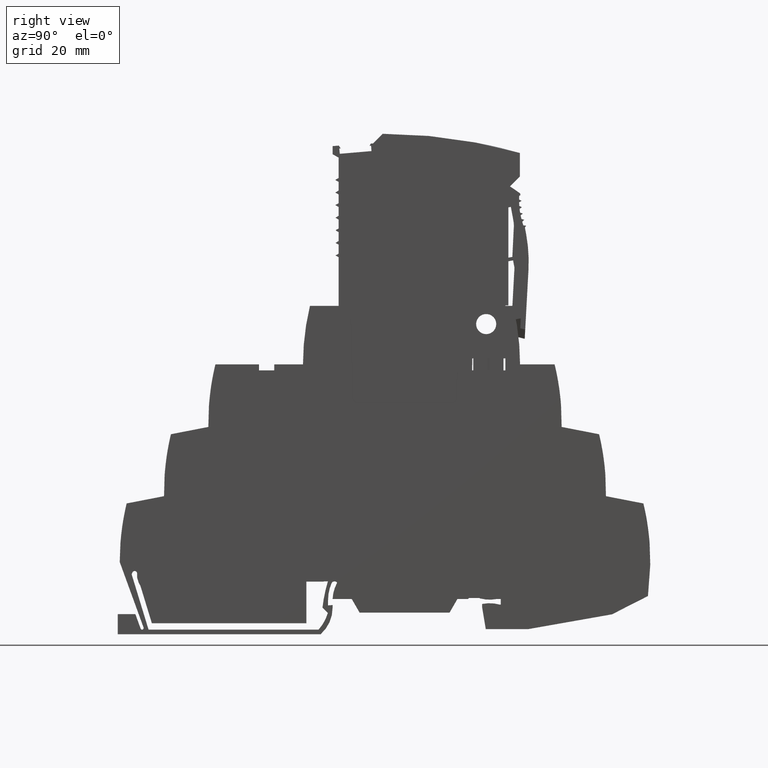
[diagram: clean part render]
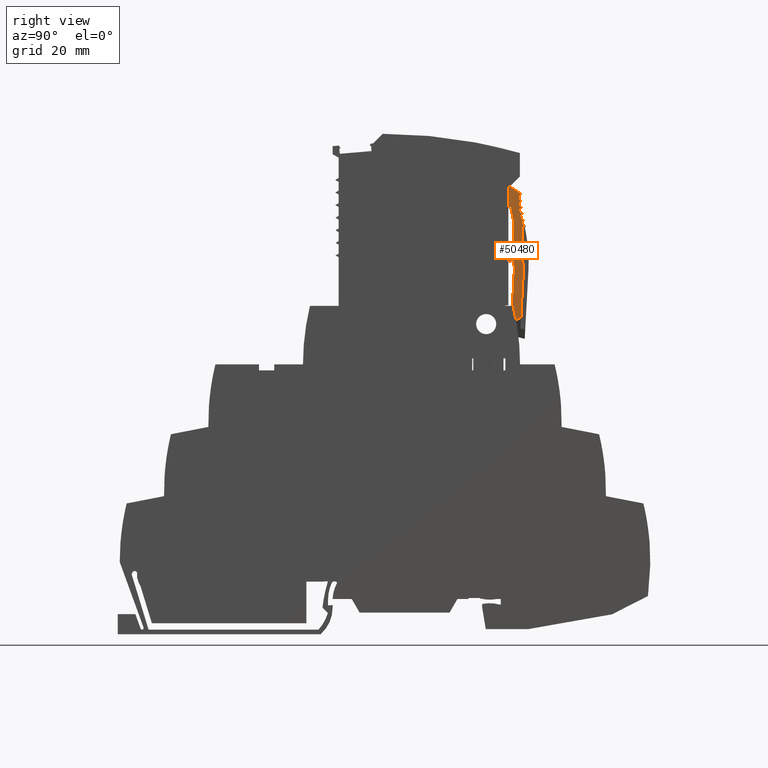
[diagram: same view with one face highlighted and labeled with its STEP entity id]
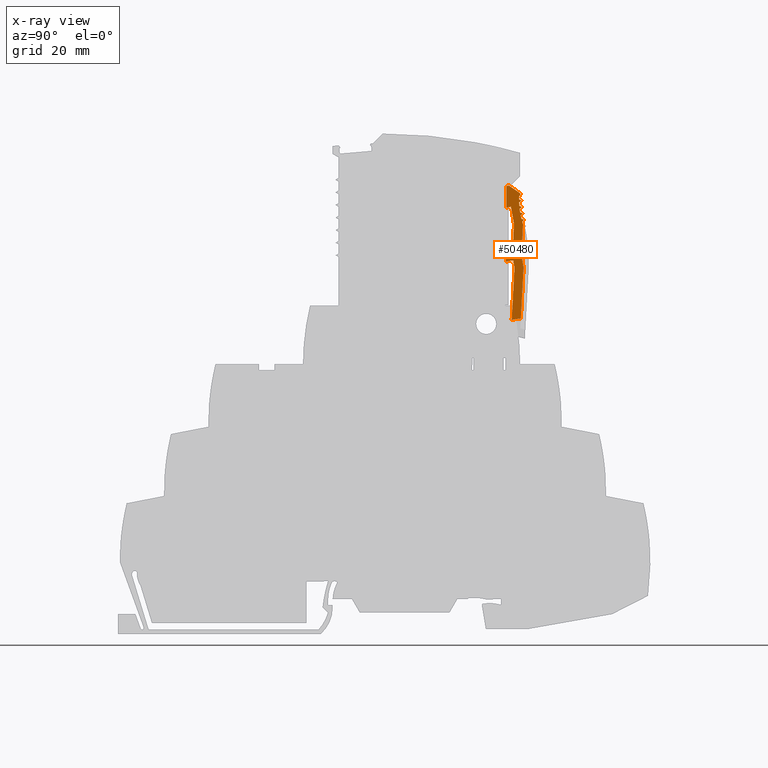
[diagram: x-ray of the same camera — body ghosted, the highlighted face saturated]
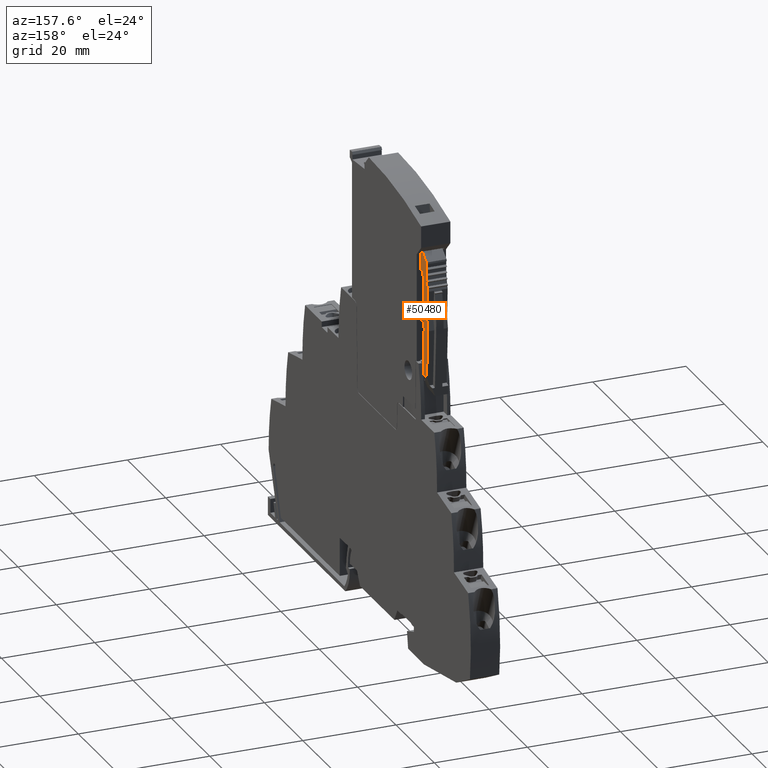
[diagram: same view with one face highlighted and labeled with its STEP entity id]
A machine part, right view. The second image highlights one B-rep face of the part: STEP entity #50480.
The next image is the same camera in x-ray: the body ghosted, the highlighted face saturated — about 0% of this face is hidden behind the body in this view.
A second angle (auxiliary view) of the same face is appended — the face is thin or edge-on in the first view.
In plain terms, the highlighted planar face has unit normal (1, -0, 0).
Its self-contained STEP definition (entity closure, byte-faithful):
#3870=CARTESIAN_POINT('',(1.62298429946844,82.1011467988574,
5.20000083678018));
#3880=VERTEX_POINT('',#3870);
#3910=CARTESIAN_POINT('',(1.09429344283373,84.0300029308981,
5.20000083316418));
#3920=DIRECTION('',(2.8134761309659E-9,-1.10352373928041E-9,-1.));
#3930=DIRECTION('',(-0.999999999999995,9.92840027722557E-8,
-2.81347624052814E-9));
#3940=AXIS2_PLACEMENT_3D('',#3910,#3920,#3930);
#3950=CIRCLE('',#3940,2.);
#3960=CARTESIAN_POINT('',(1.12243019621117,82.0302008599147,
5.20000083545017));
#3970=VERTEX_POINT('',#3960);
#3980=EDGE_CURVE('',#3880,#3970,#3950,.T.);
#5430=CARTESIAN_POINT('',(0.997363683565904,67.6991603742551,
5.20000084049094));
#5440=VERTEX_POINT('',#5430);
#5470=CARTESIAN_POINT('',(0.997363683566063,67.6991603742737,
5.20000084049094));
#5480=DIRECTION('',(-0.00872663477859719,-0.999961922197761,
4.41660643497786E-10));
#5490=VECTOR('',#5480,1.);
#5500=LINE('',#5470,#5490);
#5510=CARTESIAN_POINT('',(0.991140705468159,66.9860858273872,
5.20000084080589));
#5520=VERTEX_POINT('',#5510);
#5530=EDGE_CURVE('',#5440,#5520,#5500,.T.);
#5640=CARTESIAN_POINT('',(0.406555339478865,0.,5.20000087039215));
#5650=DIRECTION('',(0.00872663477859642,0.999961922197761,
-4.41660905764474E-10));
#5660=VECTOR('',#5650,1.);
#5670=LINE('',#5640,#5660);
#5680=CARTESIAN_POINT('',(1.08470762615459,77.7076709787711,
5.20000083607041));
#5690=VERTEX_POINT('',#5680);
#5700=EDGE_CURVE('',#5690,#3970,#5670,.T.);
#48120=CARTESIAN_POINT('',(3.34118784050877,60.6443424671896,
5.20000084961082));
#48130=DIRECTION('',(-2.49602655445891E-9,4.63460466040404E-10,1.));
#48140=DIRECTION('',(0.983254907564019,0.182235525491798,
2.36977139750829E-9));
#48150=AXIS2_PLACEMENT_3D('',#48120,#48130,#48140);
#48160=PLANE('',#48150);
#48170=CARTESIAN_POINT('',(14.9108958416861,0.,5.20000090659537));
#48180=DIRECTION('',(0.182235525491749,-0.983254907564028,
9.10564484923881E-10));
#48190=VECTOR('',#48180,1.);
#48200=LINE('',#48170,#48190);
#48210=CARTESIAN_POINT('',(2.4457906289952,67.2556892549208,
5.20000084431179));
#48220=VERTEX_POINT('',#48210);
#48230=CARTESIAN_POINT('',(2.71914391723229,65.7808068935777,
5.20000084567763));
#48240=VERTEX_POINT('',#48230);
#48250=EDGE_CURVE('',#48220,#48240,#48200,.T.);
#48260=ORIENTED_EDGE('',*,*,#48250,.T.);
#48270=CARTESIAN_POINT('',(0.,66.8023887556447,5.20000083841712));
#48280=DIRECTION('',(0.983254907564271,0.182235525490438,
2.36977139300709E-9));
#48290=VECTOR('',#48280,1.);
#48300=LINE('',#48270,#48290);
#48310=EDGE_CURVE('',#5520,#48220,#48300,.T.);
#48320=ORIENTED_EDGE('',*,*,#48310,.T.);
#48330=ORIENTED_EDGE('',*,*,#5530,.T.);
#48340=CARTESIAN_POINT('',(0.,67.5143099417145,5.20000083808717));
#48350=DIRECTION('',(-0.98325490756426,-0.182235525490498,
-2.36977139300709E-9));
#48360=VECTOR('',#48350,1.);
#48370=LINE('',#48340,#48360);
#48380=CARTESIAN_POINT('',(2.29821344944301,67.9402586274791,
5.20000084362616));
#48390=VERTEX_POINT('',#48380);
#48400=EDGE_CURVE('',#48390,#5440,#48370,.T.);
#48410=ORIENTED_EDGE('',*,*,#48400,.T.);
#48420=CARTESIAN_POINT('',(-1.04015361656124,0.,5.20000086678113));
#48430=DIRECTION('',(-0.0490775910702315,-0.998794968977489,
3.40403007864643E-10));
#48440=VECTOR('',#48430,1.);
#48450=LINE('',#48420,#48440);
#48460=CARTESIAN_POINT('',(2.59360711926246,73.9519170004669,
5.2000008415773));
#48470=VERTEX_POINT('',#48460);
#48480=EDGE_CURVE('',#48470,#48390,#48450,.T.);
#48490=ORIENTED_EDGE('',*,*,#48480,.T.);
#48500=CARTESIAN_POINT('',(-2.400367725625,74.197304955818,
5.20000082899849));
#48510=DIRECTION('',(2.49602655820842E-9,-4.63460465345472E-10,-1.));
#48520=DIRECTION('',(0.983254907566442,0.182235525478725,
2.36977140133376E-9));
#48530=AXIS2_PLACEMENT_3D('',#48500,#48510,#48520);
#48540=CIRCLE('',#48530,5.00000000000001);
#48550=CARTESIAN_POINT('',(2.51590681219511,75.108482583277,
5.20000084084734));
#48560=VERTEX_POINT('',#48550);
#48570=EDGE_CURVE('',#48560,#48470,#48540,.T.);
#48580=ORIENTED_EDGE('',*,*,#48570,.T.);
#48590=CARTESIAN_POINT('',(16.4364412404051,0.,5.20000091040318));
#48600=DIRECTION('',(0.182235525491783,-0.983254907564022,
9.10564498801669E-10));
#48610=VECTOR('',#48600,1.);
#48620=LINE('',#48590,#48610);
#48630=CARTESIAN_POINT('',(2.002644084539,77.8778004452754,
5.20000083828275));
#48640=VERTEX_POINT('',#48630);
#48650=EDGE_CURVE('',#48640,#48560,#48620,.T.);
#48660=ORIENTED_EDGE('',*,*,#48650,.T.);
#48670=CARTESIAN_POINT('',(0.,77.5066323033104,5.20000083345612));
#48680=DIRECTION('',(-0.983254907564069,-0.182235525491532,
-2.36977139300709E-9));
#48690=VECTOR('',#48680,1.);
#48700=LINE('',#48670,#48690);
#48710=EDGE_CURVE('',#48640,#5690,#48700,.T.);
#48720=ORIENTED_EDGE('',*,*,#48710,.F.);
#48730=ORIENTED_EDGE('',*,*,#5700,.F.);
#48740=ORIENTED_EDGE('',*,*,#3980,.T.);
#48750=CARTESIAN_POINT('',(0.,83.2165930031065,5.20000083080978));
#48760=DIRECTION('',(0.824126188621771,-0.566406236925188,
2.31954783158628E-9));
#48770=VECTOR('',#48760,1.);
#48780=LINE('',#48750,#48770);
#48790=CARTESIAN_POINT('',(3.84168019135634,80.576279358548,
5.2000008416224));
#48800=VERTEX_POINT('',#48790);
#48810=EDGE_CURVE('',#3880,#48800,#48780,.T.);
#48820=ORIENTED_EDGE('',*,*,#48810,.F.);
#48830=CARTESIAN_POINT('',(18.7756108517462,0.,5.20000091624181));
#48840=DIRECTION('',(-0.18223552549144,0.983254907564086,
-9.10564498801669E-10));
#48850=VECTOR('',#48840,1.);
#48860=LINE('',#48830,#48850);
#48870=CARTESIAN_POINT('',(3.90963086502837,80.2096503317425,
5.20000084196192));
#48880=VERTEX_POINT('',#48870);
#48890=EDGE_CURVE('',#48880,#48800,#48860,.T.);
#48900=ORIENTED_EDGE('',*,*,#48890,.T.);
#48910=CARTESIAN_POINT('',(0.,78.3448520672441,5.20000083306764));
#48920=DIRECTION('',(0.902585284350011,0.430511096807981,
2.05335196068468E-9));
#48930=VECTOR('',#48920,1.);
#48940=LINE('',#48910,#48930);
#48950=CARTESIAN_POINT('',(3.66617811406199,80.0935293261636,
5.20000084140807));
#48960=VERTEX_POINT('',#48950);
#48970=EDGE_CURVE('',#48960,#48880,#48940,.T.);
#48980=ORIENTED_EDGE('',*,*,#48970,.T.);
#48990=CARTESIAN_POINT('',(18.6397237342521,79.2030622801326,
5.20000087919514));
#49000=DIRECTION('',(2.49602655487909E-9,-4.63460466044779E-10,-1.));
#49010=DIRECTION('',(-0.999945777116274,0.01041358859049,
-2.50071749974278E-9));
#49020=AXIS2_PLACEMENT_3D('',#48990,#49000,#49010);
#49030=CIRCLE('',#49020,14.9999999999994);
#49040=CARTESIAN_POINT('',(3.64053707750857,79.35926610899,
5.20000084168438));
#49050=VERTEX_POINT('',#49040);
#49060=EDGE_CURVE('',#49050,#48960,#49030,.T.);
#49070=ORIENTED_EDGE('',*,*,#49060,.T.);
#49080=CARTESIAN_POINT('',(0.,81.4189828854286,5.2000008316429));
#49090=DIRECTION('',(-0.870355695939795,0.492423560103653,
-2.4006497900686E-9));
#49100=VECTOR('',#49090,1.);
#49110=LINE('',#49080,#49100);
#49120=CARTESIAN_POINT('',(4.14027584982197,79.0765275154099,
5.20000084306278));
#49130=VERTEX_POINT('',#49120);
#49140=EDGE_CURVE('',#49130,#49050,#49110,.T.);
#49150=ORIENTED_EDGE('',*,*,#49140,.T.);
#49160=CARTESIAN_POINT('',(0.,76.6377186594679,5.20000083385883));
#49170=DIRECTION('',(0.86162916044171,0.507538362960392,
1.91542531835509E-9));
#49180=VECTOR('',#49170,1.);
#49190=LINE('',#49160,#49180);
#49200=CARTESIAN_POINT('',(3.64554765899443,78.7851103401204,
5.20000084196298));
#49210=VERTEX_POINT('',#49200);
#49220=EDGE_CURVE('',#49210,#49130,#49190,.T.);
#49230=ORIENTED_EDGE('',*,*,#49220,.T.);
#49240=CARTESIAN_POINT('',(18.6397237342525,79.2030622801311,
5.20000087919514));
#49250=DIRECTION('',(2.4960265335364E-9,-4.63460467651527E-10,-1.));
#49260=DIRECTION('',(-0.997048285590744,-0.0767770551698732,
-2.45307584615754E-9));
#49270=AXIS2_PLACEMENT_3D('',#49240,#49250,#49260);
#49280=CIRCLE('',#49270,15.);
#49290=CARTESIAN_POINT('',(3.68399945039134,78.0514064525829,
5.200000842399));
#49300=VERTEX_POINT('',#49290);
#49310=EDGE_CURVE('',#49300,#49210,#49280,.T.);
#49320=ORIENTED_EDGE('',*,*,#49310,.T.);
#49330=CARTESIAN_POINT('',(0.,79.7303017274961,5.20000083242554));
#49340=DIRECTION('',(-0.909961270876333,0.414693242656701,
-2.46348141885733E-9));
#49350=VECTOR('',#49340,1.);
#49360=LINE('',#49330,#49350);
#49370=CARTESIAN_POINT('',(4.20647885792507,77.8132988685944,
5.20000084381348));
#49380=VERTEX_POINT('',#49370);
#49390=EDGE_CURVE('',#49380,#49300,#49360,.T.);
#49400=ORIENTED_EDGE('',*,*,#49390,.T.);
#49410=CARTESIAN_POINT('',(0.,74.8128466589814,5.20000083470458));
#49420=DIRECTION('',(0.814115518356349,0.580702955710898,
1.76292111464527E-9));
#49430=VECTOR('',#49420,1.);
#49440=LINE('',#49410,#49430);
#49450=CARTESIAN_POINT('',(3.73903193759044,77.4798722207099,
5.20000084280125));
#49460=VERTEX_POINT('',#49450);
#49470=EDGE_CURVE('',#49460,#49380,#49440,.T.);
#49480=ORIENTED_EDGE('',*,*,#49470,.T.);
#49490=CARTESIAN_POINT('',(18.6397237342521,79.2030622801326,
5.20000083666593));
#49500=DIRECTION('',(2.49602656770005E-9,-4.63460463847555E-10,-1.));
#49510=DIRECTION('',(-0.986562654577628,-0.163383379181432,
-2.38676485982604E-9));
#49520=AXIS2_PLACEMENT_3D('',#49490,#49500,#49510);
#49530=CIRCLE('',#49520,14.9999999999997);
#49540=CARTESIAN_POINT('',(3.84128391558787,76.7523115924118,
5.20000084339367));
#49550=VERTEX_POINT('',#49540);
#49560=EDGE_CURVE('',#49550,#49460,#49530,.T.);
#49570=ORIENTED_EDGE('',*,*,#49560,.T.);
#49580=CARTESIAN_POINT('',(0.,78.1125815692863,5.20000083317529));
#49590=DIRECTION('',(-0.942641491092066,0.333806859234087,
-2.50756446162903E-9));
#49600=VECTOR('',#49590,1.);
#49610=LINE('',#49580,#49600);
#49620=CARTESIAN_POINT('',(4.38252757457421,76.5606471605001,
5.20000084483345));
#49630=VERTEX_POINT('',#49620);
#49640=EDGE_CURVE('',#49630,#49550,#49610,.T.);
#49650=ORIENTED_EDGE('',*,*,#49640,.T.);
#49660=CARTESIAN_POINT('',(0.,72.8176150055485,5.2000008356293));
#49670=DIRECTION('',(0.760405965600322,0.649448048329843,
1.5970000322163E-9));
#49680=VECTOR('',#49670,1.);
#49690=LINE('',#49660,#49680);
#49700=CARTESIAN_POINT('',(3.9459194780434,76.1877486181365,
5.20000084391649));
#49710=VERTEX_POINT('',#49700);
#49720=EDGE_CURVE('',#49710,#49630,#49690,.T.);
#49730=ORIENTED_EDGE('',*,*,#49720,.T.);
#49740=CARTESIAN_POINT('',(18.6397237342525,79.2030622801311,
5.20000087919514));
#49750=DIRECTION('',(2.49602653633126E-9,-4.63460470695917E-10,-1.));
#49760=DIRECTION('',(-0.968568686060409,-0.248746257023522,
-2.30228908530232E-9));
#49770=AXIS2_PLACEMENT_3D('',#49740,#49750,#49760);
#49780=CIRCLE('',#49770,15.);
#49790=CARTESIAN_POINT('',(4.11119344334635,75.4718684247783,
5.2000008446608));
#49800=VERTEX_POINT('',#49790);
#49810=EDGE_CURVE('',#49800,#49710,#49780,.T.);
#49820=ORIENTED_EDGE('',*,*,#49810,.T.);
#49830=CARTESIAN_POINT('',(0.,76.5350953419164,5.20000083390639));
#49840=DIRECTION('',(-0.968147640378105,0.250380004054452,
-2.53256346449682E-9));
#49850=VECTOR('',#49840,1.);
#49860=LINE('',#49830,#49850);
#49870=CARTESIAN_POINT('',(4.66708216272639,75.3281058270016,
5.20000084611494));
#49880=VERTEX_POINT('',#49870);
#49890=EDGE_CURVE('',#49880,#49800,#49860,.T.);
#49900=ORIENTED_EDGE('',*,*,#49890,.T.);
#49910=CARTESIAN_POINT('',(-69.3576412692333,0.,5.20000069625887));
#49920=DIRECTION('',(0.700909264300218,0.713250449153821,
1.41892475546967E-9));
#49930=VECTOR('',#49920,1.);
#49940=LINE('',#49910,#49930);
#49950=CARTESIAN_POINT('',(4.2646357412475,74.9185733732299,
5.20000084530023));
#49960=VERTEX_POINT('',#49950);
#49970=EDGE_CURVE('',#49960,#49880,#49940,.T.);
#49980=ORIENTED_EDGE('',*,*,#49970,.T.);
#49990=CARTESIAN_POINT('',(18.6397237342521,79.2030622801326,
5.20000087919514));
#50000=DIRECTION('',(2.49602643404491E-9,-4.63460488357819E-10,-1.));
#50010=DIRECTION('',(0.983254907564019,0.182235525491798,
2.3697712750436E-9));
#50020=AXIS2_PLACEMENT_3D('',#49990,#50000,#50010);
#50030=CIRCLE('',#50020,14.9999999999999);
#50040=CARTESIAN_POINT('',(4.41928562035126,74.4303125644326,
5.20000084591253));
#50050=VERTEX_POINT('',#50040);
#50060=EDGE_CURVE('',#50050,#49960,#50030,.T.);
#50070=ORIENTED_EDGE('',*,*,#50060,.T.);
#50080=CARTESIAN_POINT('',(0.762018056238112,0.,5.2000008712794));
#50090=DIRECTION('',(0.0490775910698834,0.998794968977506,
-3.40403007864643E-10));
#50100=VECTOR('',#50090,1.);
#50110=LINE('',#50080,#50100);
#50120=CARTESIAN_POINT('',(4.1106918269203,68.1500139267586,
5.20000084805294));
#50130=VERTEX_POINT('',#50120);
#50140=EDGE_CURVE('',#50130,#50050,#50110,.T.);
#50150=ORIENTED_EDGE('',*,*,#50140,.T.);
#50160=CARTESIAN_POINT('',(16.7415503201765,0.,5.20000091116474));
#50170=DIRECTION('',(-0.182235525492147,0.983254907563955,
-9.10564498801669E-10));
#50180=VECTOR('',#50170,1.);
#50190=LINE('',#50160,#50180);
#50200=CARTESIAN_POINT('',(4.52815290353835,65.8975955182562,
5.20000085013884));
#50210=VERTEX_POINT('',#50200);
#50220=EDGE_CURVE('',#50210,#50130,#50190,.T.);
#50230=ORIENTED_EDGE('',*,*,#50220,.T.);
#50240=CARTESIAN_POINT('',(0.945096401008689,0.,5.20000087173637));
#50250=DIRECTION('',(0.0542929018088861,0.998525052671775,
-3.27260357702031E-10));
#50260=VECTOR('',#50250,1.);
#50270=LINE('',#50240,#50260);
#50280=CARTESIAN_POINT('',(3.97593149447208,55.7414444708254,
5.20000085346746));
#50290=VERTEX_POINT('',#50280);
#50300=EDGE_CURVE('',#50290,#50210,#50270,.T.);
#50310=ORIENTED_EDGE('',*,*,#50300,.T.);
#50320=CARTESIAN_POINT('',(2.15492151554043,55.4039402205199,
5.20000084907859));
#50330=DIRECTION('',(0.98325490756402,0.182235525491795,
2.36977157347326E-9));
#50340=VECTOR('',#50330,1.);
#50350=LINE('',#50320,#50340);
#50360=CARTESIAN_POINT('',(2.15492151554043,55.4039402205198,
5.20000084907863));
#50370=VERTEX_POINT('',#50360);
#50380=EDGE_CURVE('',#50370,#50290,#50350,.T.);
#50390=ORIENTED_EDGE('',*,*,#50380,.T.);
#50400=CARTESIAN_POINT('',(-0.857562425838176,0.,5.20000086723688));
#50410=DIRECTION('',(-0.0542929018092437,-0.998525052671755,
3.2726035770203E-10));
#50420=VECTOR('',#50410,1.);
#50430=LINE('',#50400,#50420);
#50440=EDGE_CURVE('',#48240,#50370,#50430,.T.);
#50450=ORIENTED_EDGE('',*,*,#50440,.T.);
#50460=EDGE_LOOP('',(#50450,#50390,#50310,#50230,#50150,#50070,#49980,
#49900,#49820,#49730,#49650,#49570,#49480,#49400,#49320,#49230,#49150,
#49070,#48980,#48900,#48820,#48740,#48730,#48720,#48660,#48580,#48490,
#48410,#48330,#48320,#48260));
#50470=FACE_OUTER_BOUND('',#50460,.T.);
#50480=ADVANCED_FACE('',(#50470),#48160,.T.);